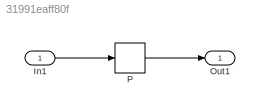
MODEL slx_31991eaff80f
KIND model
CONFIG AbsTol = auto
CONFIG EnableMultiTasking = off
CONFIG FixedStep = auto
CONFIG MaxStep = auto
CONFIG MinStep = auto
CONFIG RelTol = 1e-3
CONFIG SampleTimeConstraint = Unconstrained
CONFIG Solver = FixedStepDiscrete
CONFIG SolverName = FixedStepDiscrete
CONFIG StartTime = 0.0
CONFIG StopTime = 10.0
BLOCK [Inport] In1
  IconDisplay = Port number
  OutDataTypeStr = single
  PortDimensions = 3
BLOCK [Outport] Out1
  IconDisplay = Port number
BLOCK [Lookup_n-D] P
  BreakpointsForDimension1 = [7.33725861046161;74.2098359828534]
  BreakpointsForDimension1DataTypeStr = single
  BreakpointsForDimension2 = [25.2368005373112;56.6984944723176;73.1920316296273;76.9116001661297;81.9253745671261]
  BreakpointsForDimension2DataTypeStr = single
  BreakpointsForDimension3 = [27.8749143737613;36.6335733181987;59.0780633818252]
  BreakpointsForDimension3DataTypeStr = single
  ExtrapMethod = Clip
  FractionDataTypeStr = single
  InternalRulePriority = Speed
  NumberOfTableDimensions = 3
  OutDataTypeStr = uint16
  Ports = [1, 1]
  RndMeth = Nearest
  SaturateOnIntegerOverflow = on
  Table = reshape(repmat([4 5 6 7 8;16 19 20 21 22;10 18 23 24 25],1,2),[2,5,3])
  UseOneInputPortForAllInputData = on
LINE In1:1 -> P:1
LINE P:1 -> Out1:1
